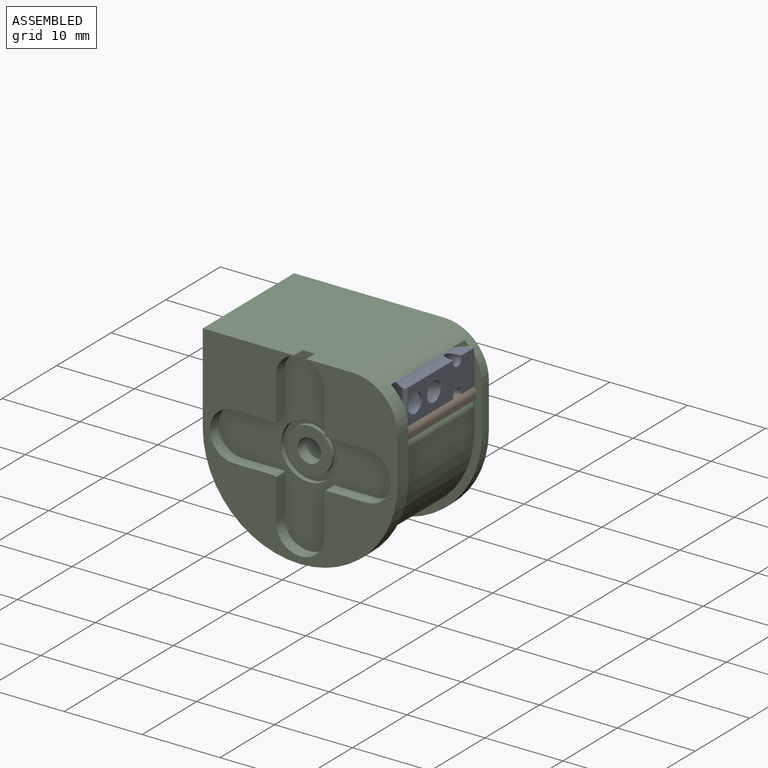
[diagram: assembled view]
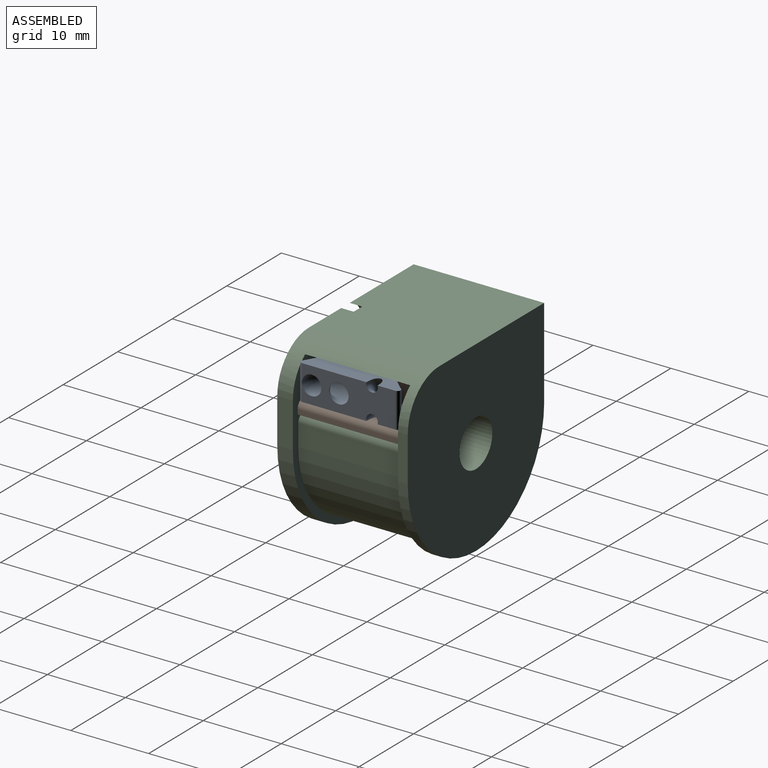
[diagram: assembled view, second angle]
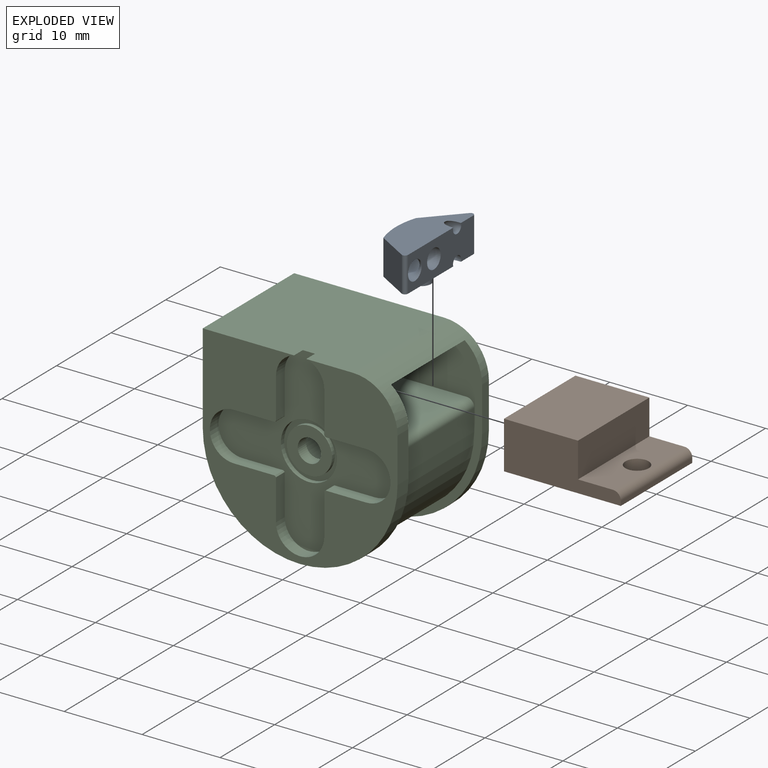
[diagram: exploded view]
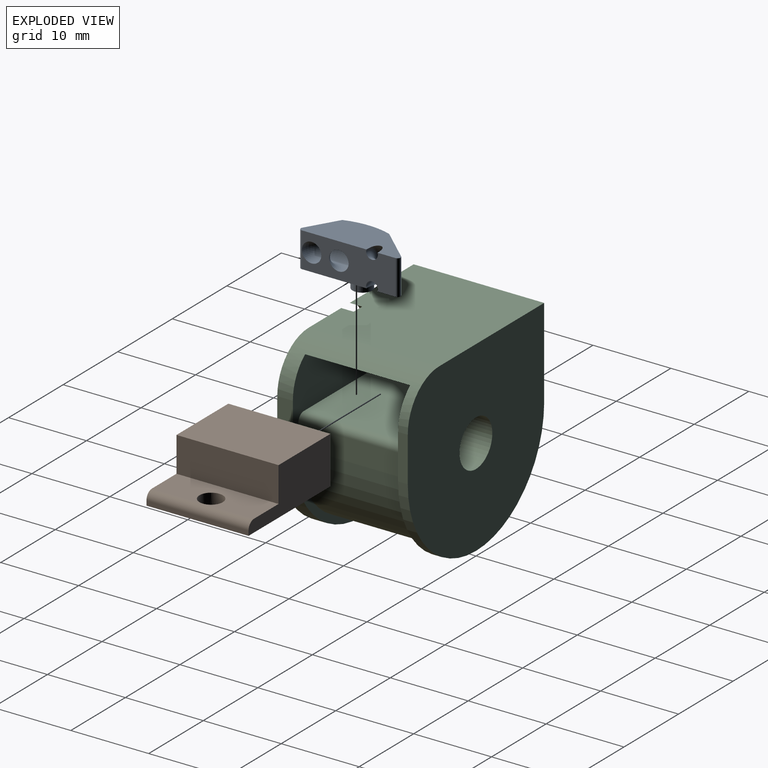
[diagram: exploded view, second angle]
ASSEMBLY  parts=3 mates=2
PART A: 12 faces, bbox 12.8x5.1x6.7 mm
  f0: cylinder r=0.39mm len=4.5mm, axis (0,0,-1), area 4.4mm2, adj f1,f5,f6,f7
  f1: plane 4.5x4.23mm, normal (-0.67,-0.74,0), area 25.8mm2, adj f0,f2,f6,f7
  f2: cylinder r=9.43mm len=6mm, axis (0,0,-1), area 27.5mm2, adj f1,f3,f6,f7
  f3: plane 4.5x3.96mm, normal (0.86,-0.51,0), area 20.6mm2, adj f2,f4,f6,f7
  f4: cylinder r=0.39mm len=4.5mm, axis (0,0,-1), area 3.8mm2, adj f3,f5,f6,f7
  f5: plane 12x4.5mm, normal (0,1,0), area 41.7mm2, adj f0,f4,f6,f7,f10,f11
  f6: plane 12.78x5.05mm, normal (0,0,1), area 44.7mm2, adj f0,f1,f2,f3,f4,f5,f11
  f7: plane 12.78x5.05mm, normal (0,0,-1), area 39.8mm2, adj f0,f1,f2,f3,f4,f5,f8,f11
  f8: cylinder r=1.25mm len=2.5mm, axis (0,0,1), area 11.8mm2, adj f7,f9
  f9: plane 2.5x2.5mm, normal (0,0,-1), area 4.9mm2, adj f8
  f10: torus R=1.75mm, axis (0,0,1), area 43.2mm2, adj f5
  f11: torus R=2mm, axis (-1,0,0), area 24.9mm2, adj f5,f6,f7
PART B: 12 faces, bbox 13.1x15x6.1 mm
  f0: plane 15x6.1mm, normal (-1,0,0), area 66.5mm2, adj f1,f3,f4,f7,f8,f9,f11
  f1: plane 15x13.1mm, normal (0,0,-1), area 189.4mm2, adj f0,f2,f4,f7,f10
  f2: plane 15x6.1mm, normal (1,0,0), area 66.5mm2, adj f1,f3,f4,f7,f8,f9,f11
  f3: plane 13.1x9.5mm, normal (0,0,1), area 124.4mm2, adj f0,f2,f4,f8
  f4: plane 13.1x6.1mm, normal (0,1,0), area 68.6mm2, adj f0,f1,f2,f3,f5
  f5: cylinder r=1.9mm len=9mm, axis (0,1,0), area 107.4mm2, adj f4,f6
  f6: plane 3.8x3.8mm, normal (0,1,0), area 11.3mm2, adj f5
  f7: plane 13.1x0.6mm, normal (0,-1,0), area 7.9mm2, adj f0,f1,f2,f11
  f8: plane 13.1x4.5mm, normal (0,-1,0), area 59mm2, adj f0,f2,f3,f9
  f9: plane 13.1x4.5mm, normal (0,0,1), area 51.9mm2, adj f0,f2,f8,f10,f11
  f10: cylinder r=1.5mm len=3mm, axis (0,0,1), area 15.1mm2, adj f1,f9
  f11: cylinder r=1mm len=13.1mm, axis (1,0,0), area 20.6mm2, adj f0,f2,f7,f9
PART C: 44 faces, bbox 25x16.8x24 mm
  f0: cylinder r=3mm len=13.55mm, axis (0,1,0), area 255.4mm2, adj f19,f40
  f1: plane 19.25x16.75mm, normal (0,0,1), area 319.9mm2, adj f2,f8,f9,f19,f21,f22,f23
  f2: plane 25x24mm, normal (0,-1,0), area 293.2mm2, adj f1,f4,f5,f8,f9,f21,f22,f24
  f3: cylinder r=3.6mm len=7.2mm, axis (0,-1,0), area 13.6mm2, adj f20,f23
  f4: plane 5.75x2mm, normal (1,0,0), area 11.5mm2, adj f2,f5,f8,f11
  f5: cylinder r=12.5mm len=25mm, axis (0,1,0), area 78.5mm2, adj f2,f4,f9,f11
  f6: cylinder r=12.5mm len=25mm, axis (0,1,0), area 49.1mm2, adj f7,f9,f13,f19
  f7: plane 5.75x1.25mm, normal (1,0,0), area 7.2mm2, adj f6,f8,f13,f19
  f8: cylinder r=5.75mm len=16.75mm, axis (0,1,0), area 80.4mm2, adj f1,f2,f4,f7,f11,f12,f13,f19
  f9: plane 16.75x11.5mm, normal (-1,0,0), area 180.1mm2, adj f1,f2,f5,f6,f15,f18,f19
  f10: plane 21x13.5mm, normal (0,0,1), area 283.5mm2, adj f11,f13,f14,f43
  f11: plane 25x22.8mm, normal (0,1,0), area 188.1mm2, adj f4,f5,f8,f10,f12,f14,f16,f17
  f12: plane 20.77x13.5mm, normal (0,0,-1), area 280.3mm2, adj f8,f11,f13,f14
  f13: plane 25x22.8mm, normal (0,-1,0), area 188.1mm2, adj f6,f7,f8,f10,f12,f14,f16,f17
  f14: plane 13.5x6.5mm, normal (1,0,0), area 75.2mm2, adj f10,f11,f12,f13,f15
  f15: cylinder r=2mm len=4mm, axis (-1,0,0), area 25.1mm2, adj f9,f14
  f16: plane 13.5x2.8mm, normal (1,0,0), area 37.8mm2, adj f11,f13,f17,f43
  f17: cylinder r=11.5mm len=23mm, axis (0,1,0), area 487.7mm2, adj f11,f13,f16,f18
  f18: plane 13.5x1mm, normal (0,0,-1), area 13.5mm2, adj f9,f11,f13,f17
  f19: plane 25x24mm, normal (0,1,0), area 497.6mm2, adj f0,f1,f6,f7,f8,f9
  f20: plane 7.2x7.2mm, normal (0,-1,0), area 14.3mm2, adj f3,f41
  f21: cylinder r=3.1mm len=3mm, axis (0,-1,0), area 6.5mm2, adj f1,f2,f23,f38
  f22: cylinder r=3.1mm len=3mm, axis (0,-1,0), area 6.5mm2, adj f1,f2,f23,f24
  f23: plane 23.2x23.1mm, normal (0,-1,0), area 192mm2, adj f1,f3,f21,f22,f24,f25,f26,f27
  f24: plane 5.24x1.6mm, normal (1,0,0), area 8.4mm2, adj f2,f22,f23,f25
  f25: cylinder r=4.5mm len=1.6mm, axis (0,-1,0), area 0.4mm2, adj f2,f23,f24,f26
  f26: plane 5.24x1.6mm, normal (0,0,-1), area 8.4mm2, adj f2,f23,f25,f27
  f27: cylinder r=3.1mm len=6.2mm, axis (0,-1,0), area 15.6mm2, adj f2,f23,f26,f28
  f28: plane 5.24x1.6mm, normal (0,0,1), area 8.4mm2, adj f2,f23,f27,f29
  f29: cylinder r=4.5mm len=1.6mm, axis (0,-1,0), area 0.4mm2, adj f2,f23,f28,f30
  f30: plane 5.24x1.6mm, normal (1,0,0), area 8.4mm2, adj f2,f23,f29,f31
  f31: cylinder r=3.1mm len=6.2mm, axis (0,-1,0), area 15.6mm2, adj f2,f23,f30,f32
  f32: plane 5.24x1.6mm, normal (-1,0,0), area 8.4mm2, adj f2,f23,f31,f33
  f33: cylinder r=4.5mm len=1.6mm, axis (0,-1,0), area 0.4mm2, adj f2,f23,f32,f34
  f34: plane 5.24x1.6mm, normal (0,0,1), area 8.4mm2, adj f2,f23,f33,f35
  f35: cylinder r=3.1mm len=6.2mm, axis (0,-1,0), area 15.6mm2, adj f2,f23,f34,f36
  f36: plane 5.24x1.6mm, normal (0,0,-1), area 8.4mm2, adj f2,f23,f35,f37
  f37: cylinder r=4.5mm len=1.6mm, axis (0,-1,0), area 0.4mm2, adj f2,f23,f36,f38
  f38: plane 5.24x1.6mm, normal (-1,0,0), area 8.4mm2, adj f2,f21,f23,f37
  f39: cylinder r=1.5mm len=3mm, axis (0,-1,0), area 14.1mm2, adj f40,f42
  f40: plane 6x6mm, normal (0,1,0), area 21.2mm2, adj f0,f39
  f41: cylinder r=2.9mm len=5.8mm, axis (0,1,0), area 9.1mm2, adj f20,f42
  f42: plane 5.8x5.8mm, normal (0,-1,0), area 19.4mm2, adj f39,f41
  f43: cylinder r=1mm len=13.5mm, axis (0,1,0), area 21.2mm2, adj f10,f11,f13,f16
PLACE A rot(axis=(0,0,-1),90deg) t=(8.92,-8,7.85)mm
PLACE B rot(axis=(0,0,1),90deg) t=(-3.08,-8,7.05)mm
PLACE C at identity
MATE slider B.f5 <-> C.f15  axis (-1,0,0) through (-3.08,-8,7.05)mm
MATE pin_slot A.f8 <-> B.f10  axis (0,0,1) through (9.42,-8,5.6)mm
